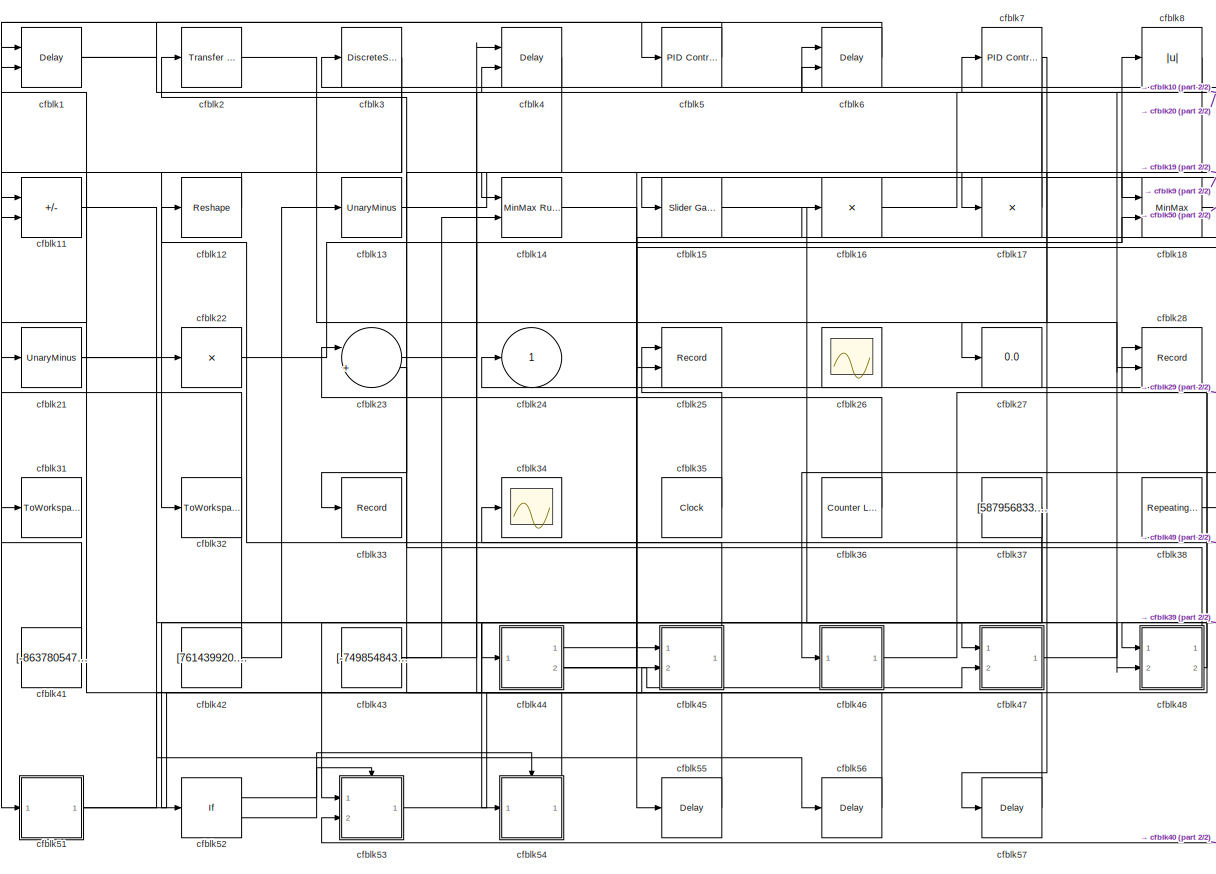
[diagram: root canvas - part 1/2, most of the canvas]
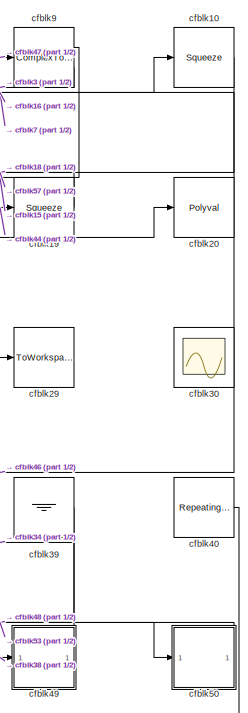
[diagram: root canvas - part 2/2, right side, full height]
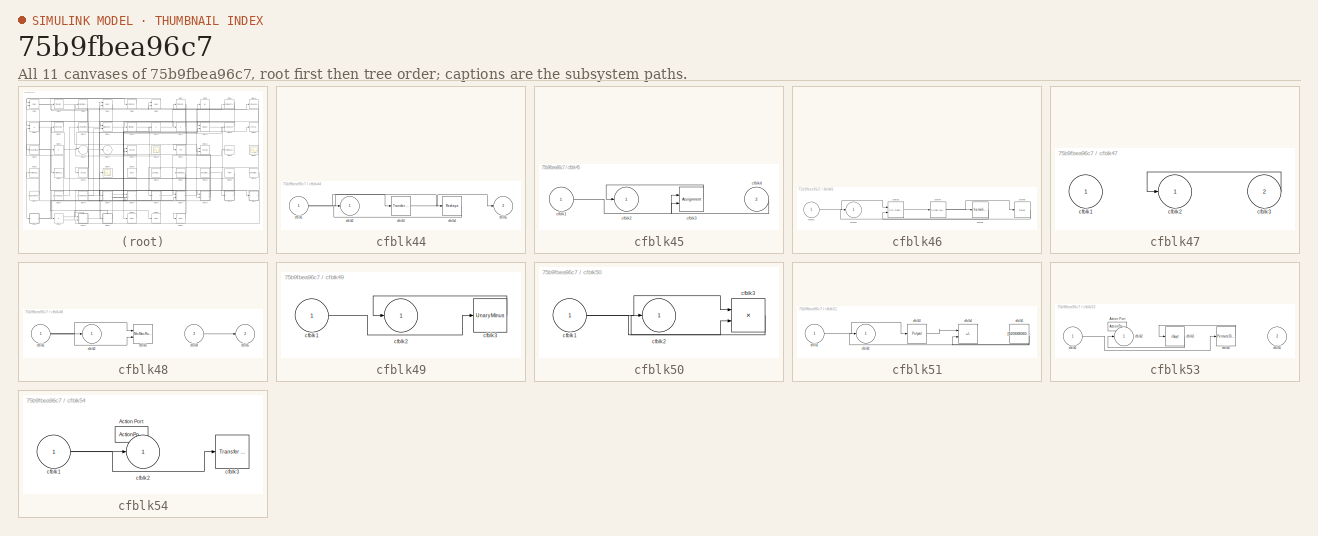
[diagram: thumbnail index - all 11 canvases of the model, root first then tree order]
MODEL slx_75b9fbea96c7
KIND model
CONFIG AbsTol = auto
CONFIG EnableMultiTasking = off
CONFIG FixedStep = auto
CONFIG MaxStep = auto
CONFIG MinStep = auto
CONFIG RelTol = 1e-3
CONFIG SampleTimeConstraint = Unconstrained
CONFIG SolverName = VariableStepAuto
CONFIG StartTime = 0.0
CONFIG StopTime = 10.0
BLOCK [Delay] cfblk1
  DelayLengthSource = Input port
  InputPortMap = u0,p1
  Ports = [2, 1]
  SampleTime = 1
BLOCK [Squeeze] cfblk10
BLOCK [Sum] cfblk11
  IconShape = rectangular
  Inputs = +-
  Ports = [2, 1]
BLOCK [Reshape] cfblk12
  Ports = [1, 1]
BLOCK [UnaryMinus] cfblk13
BLOCK [Reference] cfblk14  REF=simulink/Math
Operations/MinMax
Running
Resettable
  Ports = [2, 1]
  SourceBlock = simulink/Math\nOperations/MinMax\nRunning\nResettable
  SourceProductBaseCode = SL
  SourceType = MinMax Running Resettable
BLOCK [Reference] cfblk15  REF=simulink/Math
Operations/Slider
Gain
  Ports = [1, 1]
  SourceBlock = simulink/Math\nOperations/Slider\nGain
  SourceProductBaseCode = SL
  SourceType = Slider Gain
BLOCK [Product] cfblk16
  Inputs = *
  Ports = [1, 1]
BLOCK [Product] cfblk17
  Inputs = *
  Ports = [1, 1]
BLOCK [MinMax] cfblk18
  Inputs = 2
  Ports = [2, 1]
BLOCK [Squeeze] cfblk19
BLOCK [Reference] cfblk2  REF=simulink/Discrete/Transfer Fcn
Lead or Lag
  Ports = [1, 1]
  SourceBlock = simulink/Discrete/Transfer Fcn\nLead or Lag
  SourceProductBaseCode = SL
  SourceType = Lead or Lag Compensator
BLOCK [Polyval] cfblk20
  Coefs = [ +2.081618890e-019, -1.441693666e-014, +4.719686976e-010, -8.536869453e-006, +1.621573104e-001, -8.087801117e+001 ]
BLOCK [UnaryMinus] cfblk21
BLOCK [Product] cfblk22
  Inputs = *
  Ports = [1, 1]
BLOCK [Sum] cfblk23
  Inputs = |++
  Ports = [2, 1]
BLOCK [Outport] cfblk24
BLOCK [Record] cfblk25
  CompatibilityTag = XY
  FileSettingsInternal = {"entries":[{"content":{"excelSettings":{"content":{},"type":"Streamout.ExcelSettings"}},"type":"Streamout.FileSettingStorage","uuid":"9c1bab65-0a11-4982-96f2-1935f62dcde7"}],"packageUris":["http://schema.mathworks.com/mf0/streamout_blocks/R2020a"],"version":"1.0"}
  Layout = [1 1]
  Ports = [2]
  SignalsInternal = {"entries":[{"content":{"signals":[{"content":{"blockPath":["sampleModel286/cfblk25"],"channel":[],"dimensions":[1],"domain":"sampleModel286/cfblk25","lineColor":"#a2142f","plots":[1],"port":1,"sid":[""],"signalID":12192,"signalName":"cfblk35"},"type":"RecordBlkView.Signal","uuid":"ebce7a8f-0721-4c8d-aba1-3be77a82c2f1"},{"content":{"blockPath":["sampleModel286/cfblk25"],"channel":[],"dimensions":[...<+384ch>
  VisualizationBindings = {"xyplotplugin":{"info":[{"series":[{"bindingParametersList":[{"parameter":"X-Axis","signalID":12192,"signalName":"cfblk35"},{"parameter":"Y-Axis","signalID":12196,"signalName":"cfblk8"}],"seriesID":57607}],"subplotID":1}]}}
BLOCK [Scope] cfblk26
  Floating = on
  NumInputPorts = 1
  Ports = []
BLOCK [Display] cfblk27
  Decimation = 1
  Ports = [1]
BLOCK [Record] cfblk28
  CompatibilityTag = XY
  FileSettingsInternal = {"entries":[{"content":{"excelSettings":{"content":{},"type":"Streamout.ExcelSettings"}},"type":"Streamout.FileSettingStorage","uuid":"63e35bc2-7bf0-4c20-be96-41afd42dec13"}],"packageUris":["http://schema.mathworks.com/mf0/streamout_blocks/R2020a"],"version":"1.0"}
  Layout = [1 1]
  Ports = [2]
  SignalsInternal = {"entries":[{"content":{"signals":[{"content":{"blockPath":["sampleModel286/cfblk28"],"channel":[],"dimensions":[1,1],"domain":"sampleModel286/cfblk28","lineColor":"#a2142f","plots":[1],"port":1,"sid":[""],"signalID":12200,"signalName":"cfblk53"},"type":"RecordBlkView.Signal","uuid":"59838370-f19f-4ed9-af75-c63d15ee3758"},{"content":{"blockPath":["sampleModel286/cfblk28"],"channel":[],"dimensions"...<+386ch>
  VisualizationBindings = {"xyplotplugin":{"info":[{"series":[{"bindingParametersList":[{"parameter":"X-Axis","signalID":12200,"signalName":"cfblk53"},{"parameter":"Y-Axis","signalID":12204,"signalName":"cfblk2"}],"seriesID":54757}],"subplotID":1}]}}
BLOCK [ToWorkspace] cfblk29
  FixptAsFi = on
  MaxDataPoints = inf
  Ports = [1]
  SampleTime = -1
  SaveFormat = Timeseries
  VariableName = jmbuymv
BLOCK [DiscreteStateSpace] cfblk3
BLOCK [Scope] cfblk30
  Floating = on
  NumInputPorts = 1
  Ports = []
BLOCK [ToWorkspace] cfblk31
  FixptAsFi = on
  MaxDataPoints = inf
  Ports = [1]
  SampleTime = -1
  SaveFormat = Timeseries
  VariableName = oulgune
BLOCK [ToWorkspace] cfblk32
  FixptAsFi = on
  MaxDataPoints = inf
  Ports = [1]
  SampleTime = -1
  SaveFormat = Timeseries
  VariableName = rtpuefr
BLOCK [Record] cfblk33
  FileSettingsInternal = {"entries":[{"content":{"excelSettings":{"content":{},"type":"Streamout.ExcelSettings"}},"type":"Streamout.FileSettingStorage","uuid":"ce9fb759-888f-4c03-aacc-8a610e3a37bf"}],"packageUris":["http://schema.mathworks.com/mf0/streamout_blocks/R2020a"],"version":"1.0"}
  Ports = [1]
  SignalsInternal = {"entries":[{"content":{"signals":[{"content":{"blockPath":["sampleModel286/cfblk33"],"channel":[],"dimensions":[1],"domain":"sampleModel286/cfblk33","lineColor":"#139fff","plots":[1],"port":1,"sid":[""],"signalID":12208,"signalName":"cfblk7"},"type":"RecordBlkView.Signal","uuid":"af1b58b3-901a-4713-bc0e-4ac3aa1748a5"}]},"type":"RecordBlkView.InputSignals","uuid":"0eec382b-b4bc-4e8c-ac4f-6bd8a98a6...<+97ch>
  VisualizationBindings = {"sparklinesplugin":{"info":[{"bindingParametersList":[],"subplotID":1}]}}
BLOCK [Scope] cfblk34
  Floating = off
  NumInputPorts = 1
  Ports = [1]
BLOCK [Clock] cfblk35
BLOCK [Reference] cfblk36  REF=simulink/Sources/Counter
Limited
  Ports = [0, 1]
  SourceBlock = simulink/Sources/Counter\nLimited
  SourceProductBaseCode = SL
  SourceType = Counter Limited
BLOCK [Constant] cfblk37
  SampleTime = 1
  Value = [587956833.018105]
BLOCK [Reference] cfblk38  REF=simulink/Sources/Repeating
Sequence
Stair
  Ports = [0, 1]
  SourceBlock = simulink/Sources/Repeating\nSequence\nStair
  SourceProductBaseCode = SL
  SourceType = Repeating Sequence Stair
BLOCK [Ground] cfblk39
BLOCK [Delay] cfblk4
  InputPortMap = u0,e6
  Ports = [2, 1]
  SampleTime = 1
  ShowEnablePort = on
BLOCK [Reference] cfblk40  REF=simulink/Sources/Repeating
Sequence
Interpolated
  Ports = [0, 1]
  SourceBlock = simulink/Sources/Repeating\nSequence\nInterpolated
  SourceProductBaseCode = SL
  SourceType = Repeating Sequence Interpolated
BLOCK [Constant] cfblk41
  SampleTime = 1
  Value = [-863780547.939978]
BLOCK [Constant] cfblk42
  SampleTime = 1
  Value = [761439920.193208]
BLOCK [Constant] cfblk43
  SampleTime = 1
  Value = [-749854843.701002]
BLOCK [SubSystem] cfblk44
  Ports = [1, 2]
  RequestExecContextInheritance = off
BLOCK [Inport] cfblk44/cfblk1
BLOCK [Outport] cfblk44/cfblk2
BLOCK [Reference] cfblk44/cfblk3  REF=simulink/Discrete/Transfer Fcn
Real Zero
  Ports = [1, 1]
  SourceBlock = simulink/Discrete/Transfer Fcn\nReal Zero
  SourceProductBaseCode = SL
  SourceType = Transfer Fcn Real Zero
BLOCK [Reshape] cfblk44/cfblk4
  Ports = [1, 1]
BLOCK [Outport] cfblk44/cfblk5
  Port = 2
BLOCK [SubSystem] cfblk45
  Ports = [2, 1]
  RequestExecContextInheritance = off
BLOCK [Inport] cfblk45/cfblk1
BLOCK [Outport] cfblk45/cfblk2
BLOCK [Assignment] cfblk45/cfblk3
  DiagnosticForDimensions = Warning
  IndexOptions = Index vector (dialog)
  Indices = 1
  OutputSizes = 1
  Ports = [2, 1]
BLOCK [Inport] cfblk45/cfblk4
  Port = 2
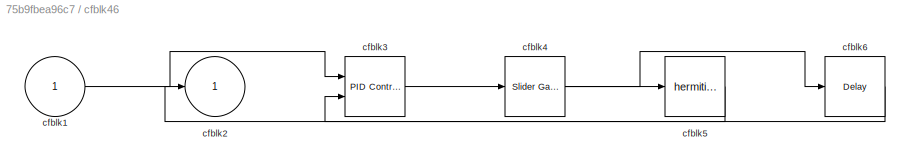
BLOCK [SubSystem] cfblk46
  Ports = [1, 1]
  RequestExecContextInheritance = off
BLOCK [Inport] cfblk46/cfblk1
BLOCK [Outport] cfblk46/cfblk2
BLOCK [Reference] cfblk46/cfblk3  REF=slpidlib/PID Controller (2DOF)
  Ports = [2, 1]
  SourceBlock = slpidlib/PID Controller (2DOF)
  SourceProductBaseCode = SL
  SourceType = PID 2dof
BLOCK [Reference] cfblk46/cfblk4  REF=simulink/Math
Operations/Slider
Gain
  Ports = [1, 1]
  SourceBlock = simulink/Math\nOperations/Slider\nGain
  SourceProductBaseCode = SL
  SourceType = Slider Gain
BLOCK [Math] cfblk46/cfblk5
  Operator = hermitian
  Ports = [1, 1]
BLOCK [Delay] cfblk46/cfblk6
  InputPortMap = u0
  Ports = [1, 1]
  SampleTime = 1
BLOCK [SubSystem] cfblk47
  Ports = [2, 1]
  RequestExecContextInheritance = off
BLOCK [Inport] cfblk47/cfblk1
BLOCK [Outport] cfblk47/cfblk2
BLOCK [Inport] cfblk47/cfblk3
  Port = 2
BLOCK [SubSystem] cfblk48
  Ports = [2, 2]
  RequestExecContextInheritance = off
BLOCK [Inport] cfblk48/cfblk1
BLOCK [Outport] cfblk48/cfblk2
BLOCK [Reference] cfblk48/cfblk3  REF=simulink/Math
Operations/MinMax
Running
Resettable
  Ports = [2, 1]
  SourceBlock = simulink/Math\nOperations/MinMax\nRunning\nResettable
  SourceProductBaseCode = SL
  SourceType = MinMax Running Resettable
BLOCK [Inport] cfblk48/cfblk4
  Port = 2
BLOCK [Outport] cfblk48/cfblk5
  Port = 2
BLOCK [SubSystem] cfblk49
  Ports = [1, 1]
  RequestExecContextInheritance = off
BLOCK [Inport] cfblk49/cfblk1
BLOCK [Outport] cfblk49/cfblk2
BLOCK [UnaryMinus] cfblk49/cfblk3
BLOCK [Reference] cfblk5  REF=slpidlib/PID Controller
  Ports = [1, 1]
  SourceBlock = slpidlib/PID Controller
  SourceProductBaseCode = SL
  SourceType = PID 1dof
BLOCK [SubSystem] cfblk50
  Ports = [1, 1]
  RequestExecContextInheritance = off
BLOCK [Inport] cfblk50/cfblk1
BLOCK [Outport] cfblk50/cfblk2
BLOCK [Product] cfblk50/cfblk3
  Inputs = **
  Ports = [2, 1]
BLOCK [SubSystem] cfblk51
  Ports = [1, 1]
  RequestExecContextInheritance = off
BLOCK [Inport] cfblk51/cfblk1
BLOCK [Outport] cfblk51/cfblk2
BLOCK [Polyval] cfblk51/cfblk3
  Coefs = [ +2.081618890e-019, -1.441693666e-014, +4.719686976e-010, -8.536869453e-006, +1.621573104e-001, -8.087801117e+001 ]
BLOCK [Sum] cfblk51/cfblk4
  IconShape = rectangular
  Inputs = --
  Ports = [2, 1]
BLOCK [Constant] cfblk51/cfblk5
  SampleTime = 1
  Value = [920688060.058427]
BLOCK [If] cfblk52
  IfExpression = u1 >= 0
  Ports = [1, 2]
  SampleTime = 1
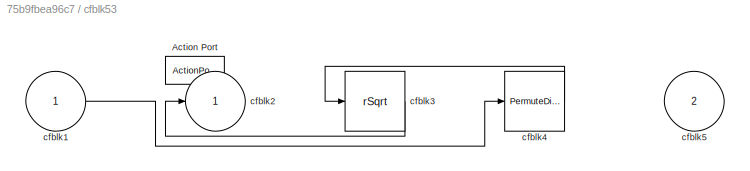
BLOCK [SubSystem] cfblk53
  Ports = [2, 1, 0, 0, 0, 0, 0, 1]
  RequestExecContextInheritance = off
  TreatAsAtomicUnit = on
BLOCK [ActionPort] cfblk53/Action Port
  ActionPortLabel = if(u1 >= 0)
BLOCK [Inport] cfblk53/cfblk1
BLOCK [Outport] cfblk53/cfblk2
BLOCK [Sqrt] cfblk53/cfblk3
  AlgorithmType = Newton-Raphson
  Operator = rSqrt
BLOCK [PermuteDimensions] cfblk53/cfblk4
BLOCK [Inport] cfblk53/cfblk5
  Port = 2
BLOCK [SubSystem] cfblk54
  Ports = [1, 1, 0, 0, 0, 0, 0, 1]
  RequestExecContextInheritance = off
  TreatAsAtomicUnit = on
BLOCK [ActionPort] cfblk54/Action Port
  ActionPortLabel = else
BLOCK [Inport] cfblk54/cfblk1
BLOCK [Outport] cfblk54/cfblk2
BLOCK [Reference] cfblk54/cfblk3  REF=simulink/Discrete/Transfer Fcn
First Order
  Ports = [1, 1]
  SourceBlock = simulink/Discrete/Transfer Fcn\nFirst Order
  SourceProductBaseCode = SL
  SourceType = First Order Transfer Fcn
BLOCK [Delay] cfblk55
  InputPortMap = u0
  Ports = [1, 1]
  SampleTime = 1
BLOCK [Delay] cfblk56
  InputPortMap = u0
  Ports = [1, 1]
  SampleTime = 1
BLOCK [Delay] cfblk57
  InputPortMap = u0
  Ports = [1, 1]
  SampleTime = 1
BLOCK [Delay] cfblk6
  InputPortMap = u0,e6
  Ports = [2, 1]
  SampleTime = 1
  ShowEnablePort = on
BLOCK [Reference] cfblk7  REF=slpidlib/PID Controller
  Ports = [1, 1]
  SourceBlock = slpidlib/PID Controller
  SourceProductBaseCode = SL
  SourceType = PID 1dof
BLOCK [Abs] cfblk8
  SaturateOnIntegerOverflow = off
BLOCK [ComplexToMagnitudeAngle] cfblk9
  Ports = [1, 2]
LINE cfblk10:1 -> cfblk57:1
LINE cfblk11:1 -> cfblk44:1
LINE cfblk12:1 -> cfblk11:1
LINE cfblk13:1 -> cfblk17:1
LINE cfblk14:1 -> cfblk55:1
LINE cfblk15:1 -> cfblk48:2
LINE cfblk16:1 -> cfblk10:1
LINE cfblk17:1 -> cfblk6:2
LINE cfblk18:1 -> cfblk50:1
LINE cfblk19:1 -> cfblk18:1
NET cfblk1:1 -> cfblk4:2, cfblk5:1
NET cfblk20:1 -> cfblk46:1, cfblk7:1
NET cfblk21:1 -> cfblk22:1, cfblk56:1
LINE cfblk22:1 -> cfblk8:1
LINE cfblk23:1 -> cfblk18:2
LINE cfblk2:1 -> cfblk28:2
LINE cfblk35:1 -> cfblk25:1
LINE cfblk36:1 -> cfblk23:1
NET cfblk37:1 -> cfblk52:1, cfblk54:1
LINE cfblk38:1 -> cfblk49:1
LINE cfblk39:1 -> cfblk53:1
NET cfblk3:1 -> cfblk21:1, cfblk32:1
LINE cfblk40:1 -> cfblk53:2
LINE cfblk41:1 -> cfblk31:1
NET cfblk42:1 -> cfblk11:2, cfblk13:1
NET cfblk43:1 -> cfblk14:2, cfblk6:1
NET cfblk44/cfblk1:1 -> cfblk44/cfblk3:1, cfblk44/cfblk4:1
LINE cfblk44/cfblk3:1 -> cfblk44/cfblk5:1
LINE cfblk44/cfblk4:1 -> cfblk44/cfblk2:1
LINE cfblk44:1 -> cfblk19:1
NET cfblk44:2 -> cfblk16:1, cfblk20:1, cfblk47:2
LINE cfblk45/cfblk1:1 -> cfblk45/cfblk3:2
LINE cfblk45/cfblk3:1 -> cfblk45/cfblk2:1
LINE cfblk45/cfblk4:1 -> cfblk45/cfblk3:1
LINE cfblk45:1 -> cfblk12:1
LINE cfblk46/cfblk1:1 -> cfblk46/cfblk3:1
LINE cfblk46/cfblk3:1 -> cfblk46/cfblk4:1
NET cfblk46/cfblk4:1 -> cfblk46/cfblk5:1, cfblk46/cfblk6:1
LINE cfblk46/cfblk5:1 -> cfblk46/cfblk2:1
LINE cfblk46/cfblk6:1 -> cfblk46/cfblk3:2
LINE cfblk46:1 -> cfblk29:1
LINE cfblk47/cfblk3:1 -> cfblk47/cfblk2:1
LINE cfblk47:1 -> cfblk9:1
NET cfblk48/cfblk1:1 -> cfblk48/cfblk2:1, cfblk48/cfblk3:1, cfblk48/cfblk3:2
LINE cfblk48/cfblk4:1 -> cfblk48/cfblk5:1
LINE cfblk48:1 -> cfblk2:1
LINE cfblk48:2 -> cfblk24:1
LINE cfblk49/cfblk1:1 -> cfblk49/cfblk3:1
LINE cfblk49/cfblk3:1 -> cfblk49/cfblk2:1
LINE cfblk49:1 -> cfblk34:1
LINE cfblk4:1 -> cfblk14:1
NET cfblk50/cfblk1:1 -> cfblk50/cfblk3:1, cfblk50/cfblk3:2
LINE cfblk50/cfblk3:1 -> cfblk50/cfblk2:1
LINE cfblk50:1 -> cfblk48:1
LINE cfblk51/cfblk1:1 -> cfblk51/cfblk3:1
LINE cfblk51/cfblk3:1 -> cfblk51/cfblk4:1
NET cfblk51/cfblk5:1 -> cfblk51/cfblk2:1, cfblk51/cfblk4:2
NET cfblk51:1 -> cfblk45:2, cfblk47:1
LINE cfblk52:1 -> cfblk53:ifaction
LINE cfblk52:2 -> cfblk54:ifaction
LINE cfblk53/cfblk1:1 -> cfblk53/cfblk4:1
LINE cfblk53/cfblk3:1 -> cfblk53/cfblk2:1
LINE cfblk53/cfblk4:1 -> cfblk53/cfblk3:1
LINE cfblk53:1 -> cfblk28:1
NET cfblk54/cfblk1:1 -> cfblk54/cfblk2:1, cfblk54/cfblk3:1
LINE cfblk54:1 -> cfblk23:2
LINE cfblk55:1 -> cfblk4:1
LINE cfblk56:1 -> cfblk1:2
LINE cfblk57:1 -> cfblk45:1
LINE cfblk5:1 -> cfblk51:1
LINE cfblk6:1 -> cfblk1:1
NET cfblk7:1 -> cfblk27:1, cfblk33:1
LINE cfblk8:1 -> cfblk25:2
LINE cfblk9:1 -> cfblk15:1
LINE cfblk9:2 -> cfblk3:1
note: NET lines group one-source signal fan-out (src -> all destinations, sorted); 1:1 wires keep LINE
